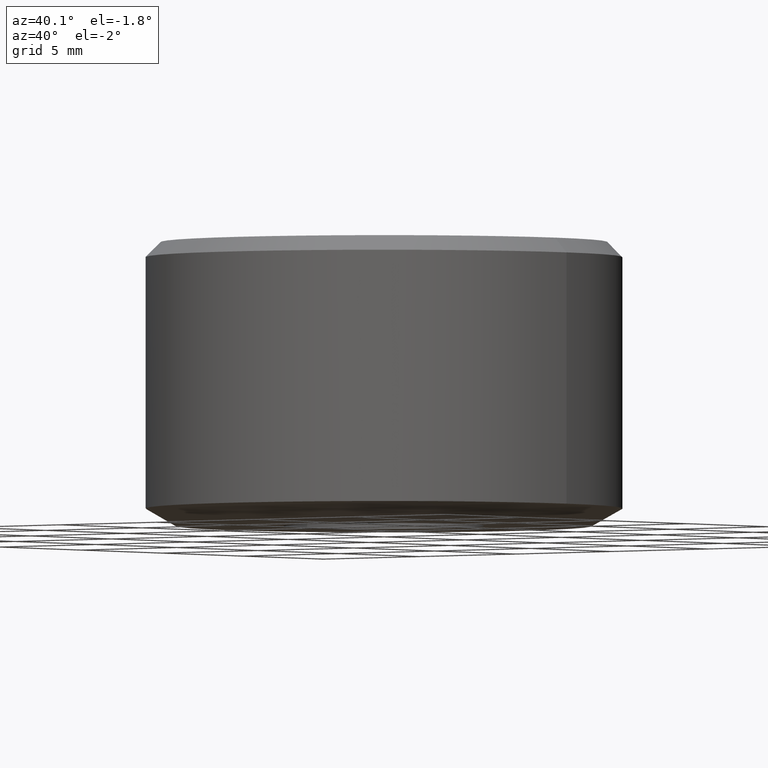
[diagram: clean part render]
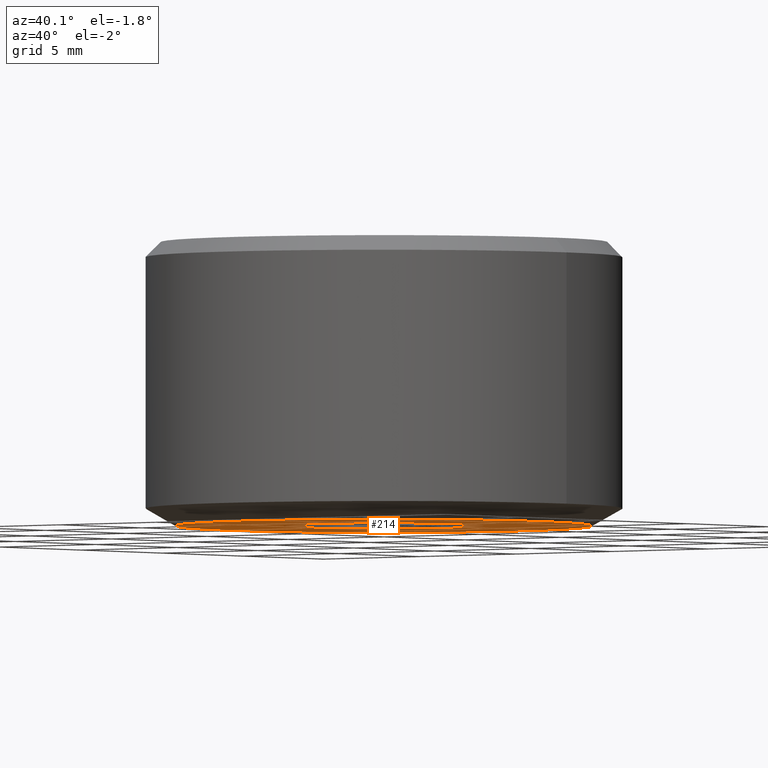
[diagram: same view with one face highlighted and labeled with its STEP entity id]
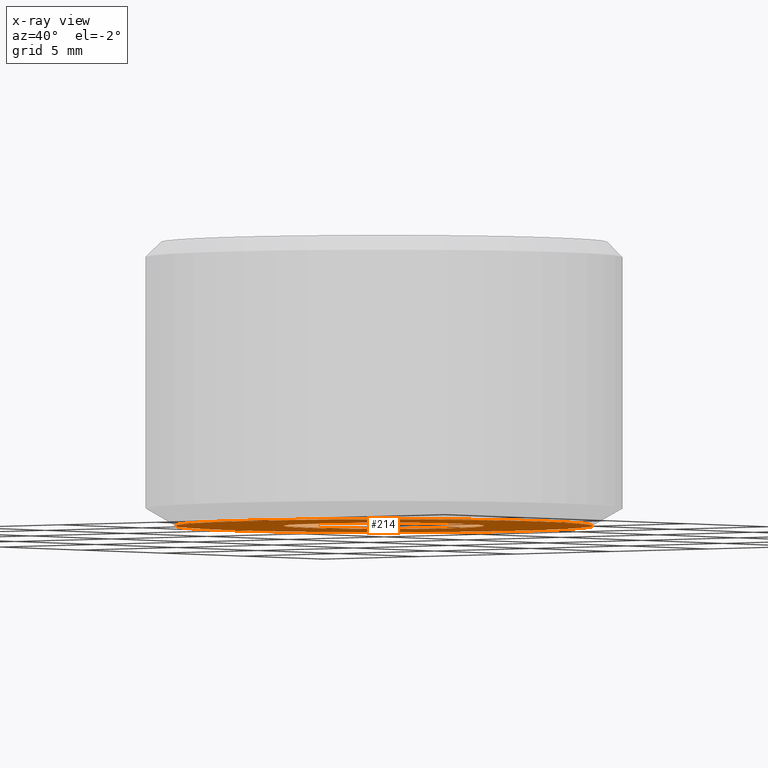
[diagram: x-ray of the same camera — body ghosted, the highlighted face saturated]
A machine part, auxiliary view. The second image highlights one B-rep face of the part: STEP entity #214.
The next image is the same camera in x-ray: the body ghosted, the highlighted face saturated — about 0% of this face is hidden behind the body in this view.
In plain terms, the highlighted planar face has unit normal (0, 0, -1).
Its self-contained STEP definition (entity closure, byte-faithful):
#2 = EDGE_LOOP ( 'NONE', ( #124, #46 ) ) ;
#8 = VERTEX_POINT ( 'NONE', #235 ) ;
#31 = ORIENTED_EDGE ( 'NONE', *, *, #117, .T. ) ;
#34 = CIRCLE ( 'NONE', #43, 8.300000000000153500 ) ;
#43 = AXIS2_PLACEMENT_3D ( 'NONE', #112, #137, #212 ) ;
#46 = ORIENTED_EDGE ( 'NONE', *, *, #245, .F. ) ;
#54 = CIRCLE ( 'NONE', #149, 4.000000000000000000 ) ;
#57 = AXIS2_PLACEMENT_3D ( 'NONE', #122, #186, #98 ) ;
#78 = EDGE_CURVE ( 'NONE', #8, #264, #213, .T. ) ;
#85 = DIRECTION ( 'NONE',  ( 1.000000000000000000, 0.0000000000000000000, 0.0000000000000000000 ) ) ;
#87 = ORIENTED_EDGE ( 'NONE', *, *, #78, .T. ) ;
#91 = AXIS2_PLACEMENT_3D ( 'NONE', #267, #239, #234 ) ;
#98 = DIRECTION ( 'NONE',  ( -1.000000000000000000, 0.0000000000000000000, -0.0000000000000000000 ) ) ;
#99 = FACE_OUTER_BOUND ( 'NONE', #2, .T. ) ;
#109 = FACE_BOUND ( 'NONE', #272, .T. ) ;
#111 = PLANE ( 'NONE',  #57 ) ;
#112 = CARTESIAN_POINT ( 'NONE',  ( 0.0000000000000000000, 0.0000000000000000000, -2.706168622523819100E-013 ) ) ;
#117 = EDGE_CURVE ( 'NONE', #264, #8, #54, .T. ) ;
#122 = CARTESIAN_POINT ( 'NONE',  ( 0.0000000000000000000, 0.0000000000000000000, -2.682323255395181400E-013 ) ) ;
#124 = ORIENTED_EDGE ( 'NONE', *, *, #157, .F. ) ;
#137 = DIRECTION ( 'NONE',  ( -0.0000000000000000000, -0.0000000000000000000, 1.000000000000000000 ) ) ;
#149 = AXIS2_PLACEMENT_3D ( 'NONE', #179, #197, #286 ) ;
#154 = VERTEX_POINT ( 'NONE', #184 ) ;
#157 = EDGE_CURVE ( 'NONE', #154, #228, #187, .T. ) ;
#159 = CARTESIAN_POINT ( 'NONE',  ( -4.000000000000000000, 4.898587196589412800E-016, -2.706168622523819100E-013 ) ) ;
#177 = CARTESIAN_POINT ( 'NONE',  ( 0.0000000000000000000, 0.0000000000000000000, -2.706168622523819100E-013 ) ) ;
#179 = CARTESIAN_POINT ( 'NONE',  ( 0.0000000000000000000, 0.0000000000000000000, -2.706168622523819100E-013 ) ) ;
#184 = CARTESIAN_POINT ( 'NONE',  ( 8.300000000000153500, 0.0000000000000000000, -2.706168622523819100E-013 ) ) ;
#186 = DIRECTION ( 'NONE',  ( 0.0000000000000000000, 0.0000000000000000000, -1.000000000000000000 ) ) ;
#187 = CIRCLE ( 'NONE', #294, 8.300000000000153500 ) ;
#197 = DIRECTION ( 'NONE',  ( -0.0000000000000000000, -0.0000000000000000000, 1.000000000000000000 ) ) ;
#206 = DIRECTION ( 'NONE',  ( -0.0000000000000000000, -0.0000000000000000000, 1.000000000000000000 ) ) ;
#212 = DIRECTION ( 'NONE',  ( 1.000000000000000000, 0.0000000000000000000, 0.0000000000000000000 ) ) ;
#213 = CIRCLE ( 'NONE', #91, 4.000000000000000000 ) ;
#214 = ADVANCED_FACE ( 'NONE', ( #109, #99 ), #111, .T. ) ;
#228 = VERTEX_POINT ( 'NONE', #345 ) ;
#234 = DIRECTION ( 'NONE',  ( 1.000000000000000000, 0.0000000000000000000, 0.0000000000000000000 ) ) ;
#235 = CARTESIAN_POINT ( 'NONE',  ( 4.000000000000000000, 0.0000000000000000000, -2.706168622523819100E-013 ) ) ;
#239 = DIRECTION ( 'NONE',  ( -0.0000000000000000000, -0.0000000000000000000, 1.000000000000000000 ) ) ;
#245 = EDGE_CURVE ( 'NONE', #228, #154, #34, .T. ) ;
#264 = VERTEX_POINT ( 'NONE', #159 ) ;
#267 = CARTESIAN_POINT ( 'NONE',  ( 0.0000000000000000000, 0.0000000000000000000, -2.706168622523819100E-013 ) ) ;
#272 = EDGE_LOOP ( 'NONE', ( #87, #31 ) ) ;
#286 = DIRECTION ( 'NONE',  ( 1.000000000000000000, 0.0000000000000000000, 0.0000000000000000000 ) ) ;
#294 = AXIS2_PLACEMENT_3D ( 'NONE', #177, #206, #85 ) ;
#345 = CARTESIAN_POINT ( 'NONE',  ( -8.300000000000153500, 1.089935651241154000E-015, -2.706168622523819100E-013 ) ) ;